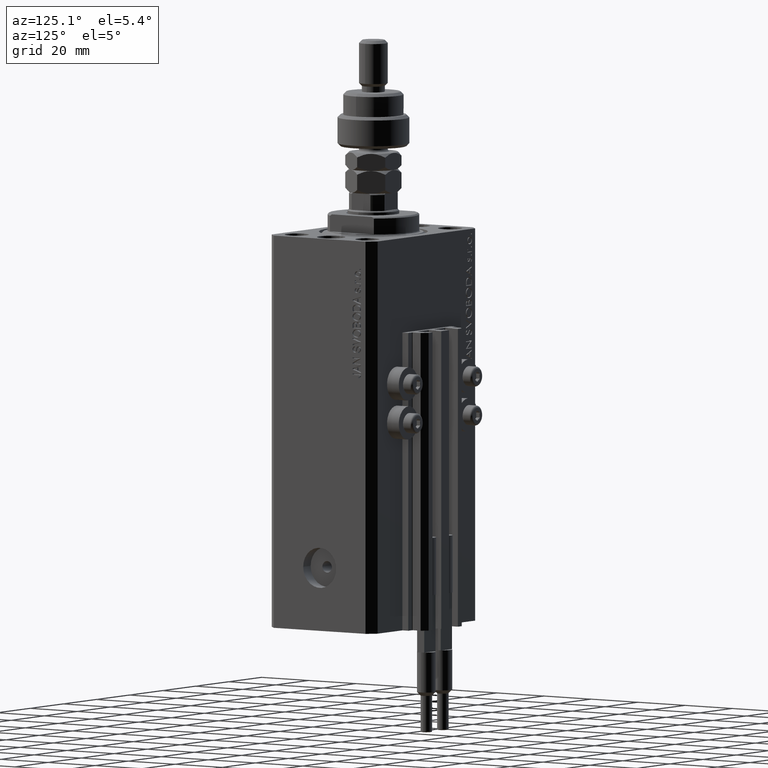
[diagram: clean part render]
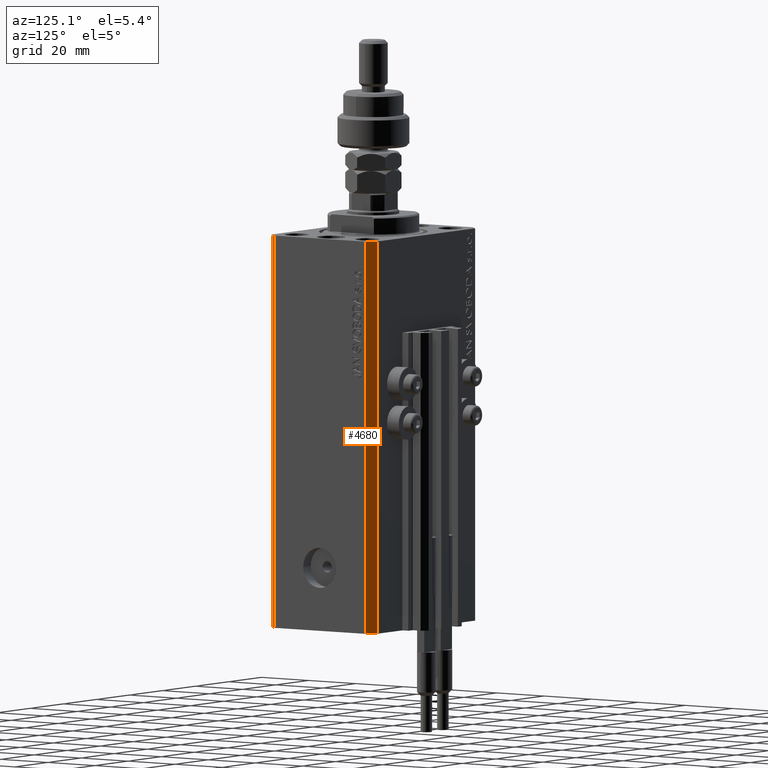
[diagram: same view with one face highlighted and labeled with its STEP entity id]
A machine part, auxiliary view. The second image highlights one B-rep face of the part: STEP entity #4680.
In plain terms, the highlighted planar face has unit normal (0.7071, 0.7071, 0).
Its self-contained STEP definition (entity closure, byte-faithful):
#3314 = ORIENTED_EDGE ( 'NONE', *, *, #17139, .F. ) ;
#4680 = ADVANCED_FACE ( 'NONE', ( #43277 ), #27322, .T. ) ;
#4972 = EDGE_CURVE ( 'NONE', #45560, #25058, #6963, .T. ) ;
#6963 = LINE ( 'NONE', #29331, #23015 ) ;
#11946 = DIRECTION ( 'NONE',  ( 0.000000000000000000, 0.000000000000000000, 1.000000000000000000 ) ) ;
#13720 = CARTESIAN_POINT ( 'NONE',  ( 32.49999999999702993, 19.49999999999945999, -137.0000000000000000 ) ) ;
#13721 = CARTESIAN_POINT ( 'NONE',  ( 32.49999999999702993, 19.49999999999945999, 0.000000000000000000 ) ) ;
#16561 = ORIENTED_EDGE ( 'NONE', *, *, #16778, .T. ) ;
#16778 = EDGE_CURVE ( 'NONE', #25058, #18554, #27366, .T. ) ;
#17139 = EDGE_CURVE ( 'NONE', #37882, #18554, #37309, .T. ) ;
#17508 = DIRECTION ( 'NONE',  ( -0.7071067811865344721, 0.7071067811865606734, 0.000000000000000000 ) ) ;
#18554 = VERTEX_POINT ( 'NONE', #49257 ) ;
#21118 = CARTESIAN_POINT ( 'NONE',  ( 32.49999999999702993, 19.49999999999945999, 0.000000000000000000 ) ) ;
#22004 = ORIENTED_EDGE ( 'NONE', *, *, #46700, .F. ) ;
#23015 = VECTOR ( 'NONE', #48901, 1000.000000000000000 ) ;
#25058 = VERTEX_POINT ( 'NONE', #48442 ) ;
#27322 = PLANE ( 'NONE',  #37000 ) ;
#27366 = LINE ( 'NONE', #31216, #32486 ) ;
#27546 = VECTOR ( 'NONE', #41385, 1000.000000000000000 ) ;
#29331 = CARTESIAN_POINT ( 'NONE',  ( 32.49999999999702993, 19.49999999999945999, -137.0000000000000000 ) ) ;
#29535 = CARTESIAN_POINT ( 'NONE',  ( 32.49999999999702993, 19.49999999999945999, -137.0000000000000000 ) ) ;
#31216 = CARTESIAN_POINT ( 'NONE',  ( 29.49999999999707967, 22.49999999999952038, -137.0000000000000000 ) ) ;
#32486 = VECTOR ( 'NONE', #11946, 1000.000000000000000 ) ;
#32499 = VECTOR ( 'NONE', #17508, 1000.000000000000000 ) ;
#33653 = LINE ( 'NONE', #29535, #27546 ) ;
#35040 = DIRECTION ( 'NONE',  ( -0.7071067811865344721, 0.7071067811865606734, 0.000000000000000000 ) ) ;
#37000 = AXIS2_PLACEMENT_3D ( 'NONE', #39667, #47641, #35040 ) ;
#37016 = EDGE_LOOP ( 'NONE', ( #3314, #22004, #41302, #16561 ) ) ;
#37309 = LINE ( 'NONE', #21118, #32499 ) ;
#37882 = VERTEX_POINT ( 'NONE', #13721 ) ;
#39667 = CARTESIAN_POINT ( 'NONE',  ( 32.49999999999702993, 19.49999999999945999, -137.0000000000000000 ) ) ;
#41302 = ORIENTED_EDGE ( 'NONE', *, *, #4972, .T. ) ;
#41385 = DIRECTION ( 'NONE',  ( 0.000000000000000000, 0.000000000000000000, 1.000000000000000000 ) ) ;
#43277 = FACE_OUTER_BOUND ( 'NONE', #37016, .T. ) ;
#45560 = VERTEX_POINT ( 'NONE', #13720 ) ;
#46700 = EDGE_CURVE ( 'NONE', #45560, #37882, #33653, .T. ) ;
#47641 = DIRECTION ( 'NONE',  ( 0.7071067811865606734, 0.7071067811865344721, -0.000000000000000000 ) ) ;
#48442 = CARTESIAN_POINT ( 'NONE',  ( 29.49999999999707967, 22.49999999999952038, -137.0000000000000000 ) ) ;
#48901 = DIRECTION ( 'NONE',  ( -0.7071067811865344721, 0.7071067811865606734, 0.000000000000000000 ) ) ;
#49257 = CARTESIAN_POINT ( 'NONE',  ( 29.49999999999707967, 22.49999999999952038, 0.000000000000000000 ) ) ;